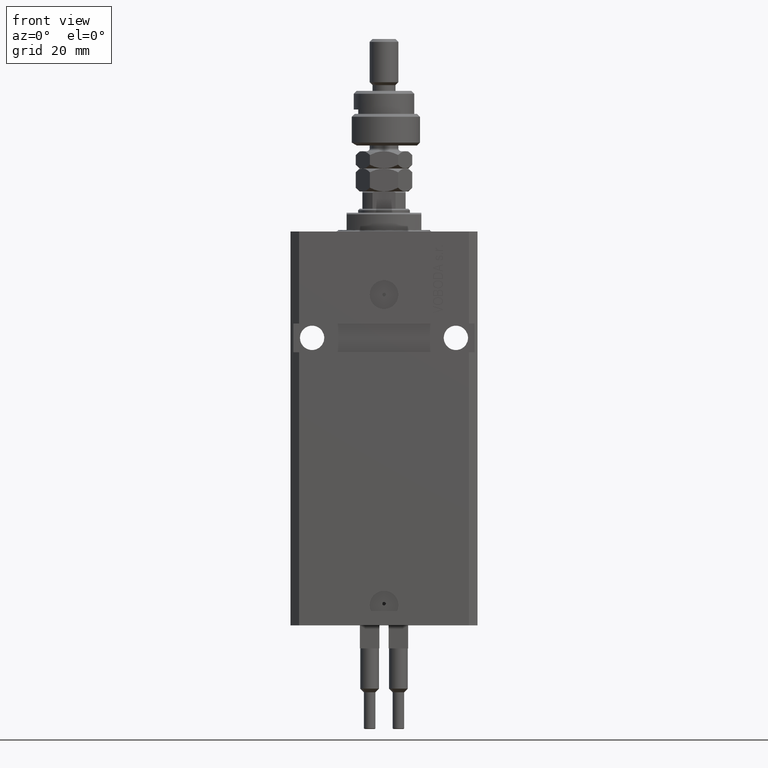
[diagram: clean part render]
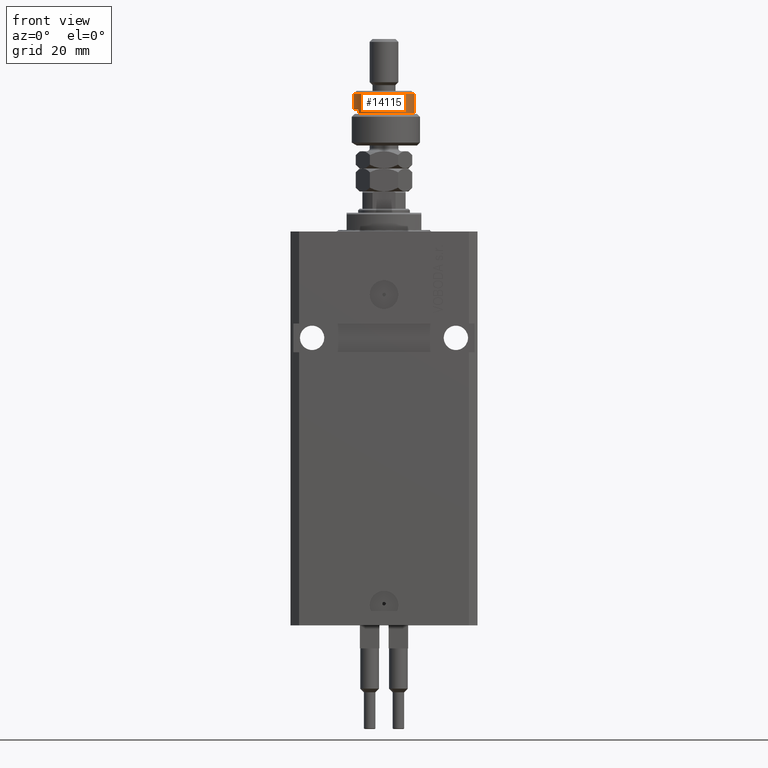
[diagram: same view with one face highlighted and labeled with its STEP entity id]
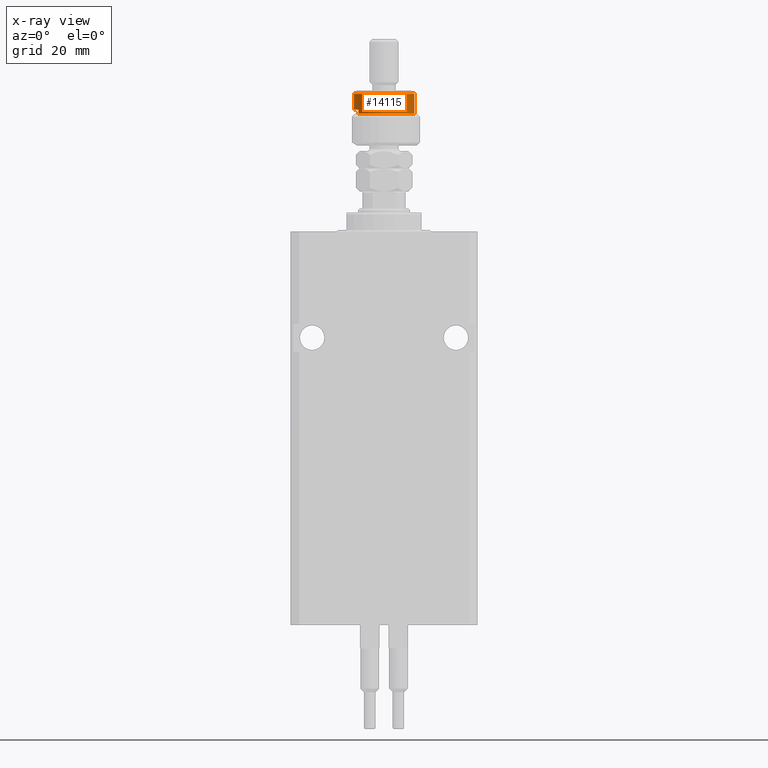
[diagram: x-ray of the same camera — body ghosted, the highlighted face saturated]
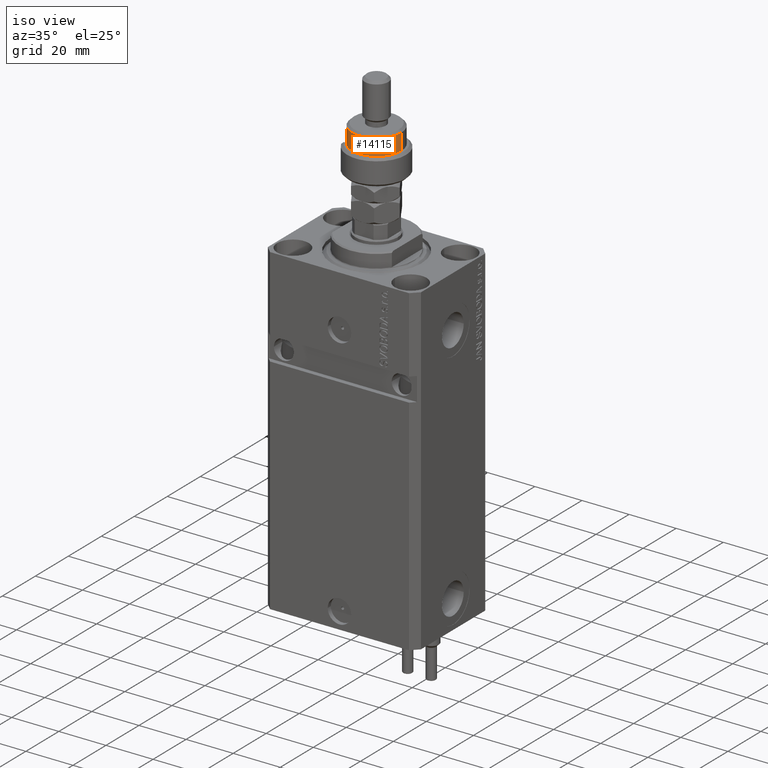
[diagram: same view with one face highlighted and labeled with its STEP entity id]
A machine part, front view. The second image highlights one B-rep face of the part: STEP entity #14115.
The next image is the same camera in x-ray: the body ghosted, the highlighted face saturated — about 0% of this face is hidden behind the body in this view.
A second angle (iso view) of the same face is appended — the face is thin or edge-on in the first view.
In plain terms, the highlighted cylindrical surface (edge-blend (fillet) strip) has radius 10.5 mm, axis along (-0, -0, -1).
Its self-contained STEP definition (entity closure, byte-faithful):
#281 = DIRECTION ( 'NONE',  ( 1.000000000000000000, 0.000000000000000000, 0.000000000000000000 ) ) ;
#1222 = AXIS2_PLACEMENT_3D ( 'NONE', #37140, #37922, #21049 ) ;
#2862 = CARTESIAN_POINT ( 'NONE',  ( 10.50000000000000000, 1.285879139104720831E-15, 11.00000000000000000 ) ) ;
#3966 = LINE ( 'NONE', #24690, #31913 ) ;
#7746 = LINE ( 'NONE', #23576, #8275 ) ;
#7771 = CIRCLE ( 'NONE', #36767, 10.50000000000000000 ) ;
#7819 = CARTESIAN_POINT ( 'NONE',  ( 0.000000000000000000, 0.000000000000000000, 11.00000000000000000 ) ) ;
#8275 = VECTOR ( 'NONE', #19682, 1000.000000000000000 ) ;
#8671 = CIRCLE ( 'NONE', #1222, 10.50000000000000000 ) ;
#9004 = EDGE_CURVE ( 'NONE', #46269, #34861, #37900, .T. ) ;
#9619 = CARTESIAN_POINT ( 'NONE',  ( -8.944271909999159220, -5.500000000000000000, 11.00000000000000000 ) ) ;
#10123 = EDGE_CURVE ( 'NONE', #13101, #34484, #7771, .T. ) ;
#10175 = CARTESIAN_POINT ( 'NONE',  ( -10.50000000000000000, 0.000000000000000000, 12.50000000000000000 ) ) ;
#10526 = EDGE_LOOP ( 'NONE', ( #19846, #28173, #45195, #47756, #13777, #35498 ) ) ;
#11220 = AXIS2_PLACEMENT_3D ( 'NONE', #33438, #49275, #13711 ) ;
#11795 = EDGE_CURVE ( 'NONE', #46269, #34484, #37444, .T. ) ;
#13101 = VERTEX_POINT ( 'NONE', #9619 ) ;
#13415 = DIRECTION ( 'NONE',  ( 0.000000000000000000, 0.000000000000000000, -1.000000000000000000 ) ) ;
#13711 = DIRECTION ( 'NONE',  ( -1.000000000000000000, 0.000000000000000000, 0.000000000000000000 ) ) ;
#13777 = ORIENTED_EDGE ( 'NONE', *, *, #47876, .T. ) ;
#14115 = ADVANCED_FACE ( 'NONE', ( #37325 ), #17609, .T. ) ;
#17609 = CYLINDRICAL_SURFACE ( 'NONE', #11220, 10.50000000000000000 ) ;
#19682 = DIRECTION ( 'NONE',  ( -0.000000000000000000, -0.000000000000000000, -1.000000000000000000 ) ) ;
#19846 = ORIENTED_EDGE ( 'NONE', *, *, #11795, .F. ) ;
#21049 = DIRECTION ( 'NONE',  ( -1.000000000000000000, 0.000000000000000000, 0.000000000000000000 ) ) ;
#23576 = CARTESIAN_POINT ( 'NONE',  ( -10.50000000000000000, 0.000000000000000000, 19.00000000000000000 ) ) ;
#23592 = VECTOR ( 'NONE', #26788, 1000.000000000000000 ) ;
#24690 = CARTESIAN_POINT ( 'NONE',  ( -8.944271909999159220, -5.500000000000000000, 19.00000000000000000 ) ) ;
#25093 = CARTESIAN_POINT ( 'NONE',  ( 0.000000000000000000, 0.000000000000000000, 17.99999999999999645 ) ) ;
#25550 = VERTEX_POINT ( 'NONE', #10175 ) ;
#26256 = EDGE_CURVE ( 'NONE', #34861, #25550, #7746, .T. ) ;
#26301 = AXIS2_PLACEMENT_3D ( 'NONE', #25093, #13415, #44819 ) ;
#26788 = DIRECTION ( 'NONE',  ( -0.000000000000000000, -0.000000000000000000, -1.000000000000000000 ) ) ;
#28173 = ORIENTED_EDGE ( 'NONE', *, *, #9004, .T. ) ;
#31709 = CARTESIAN_POINT ( 'NONE',  ( 10.50000000000000000, 1.285879139104720831E-15, 17.99999999999999645 ) ) ;
#31913 = VECTOR ( 'NONE', #47554, 1000.000000000000000 ) ;
#33438 = CARTESIAN_POINT ( 'NONE',  ( 0.000000000000000000, 0.000000000000000000, 19.00000000000000000 ) ) ;
#34484 = VERTEX_POINT ( 'NONE', #2862 ) ;
#34861 = VERTEX_POINT ( 'NONE', #49270 ) ;
#35498 = ORIENTED_EDGE ( 'NONE', *, *, #10123, .T. ) ;
#35827 = DIRECTION ( 'NONE',  ( 0.000000000000000000, 0.000000000000000000, 1.000000000000000000 ) ) ;
#36767 = AXIS2_PLACEMENT_3D ( 'NONE', #7819, #35827, #281 ) ;
#37140 = CARTESIAN_POINT ( 'NONE',  ( 0.000000000000000000, 0.000000000000000000, 12.50000000000000000 ) ) ;
#37325 = FACE_OUTER_BOUND ( 'NONE', #10526, .T. ) ;
#37444 = LINE ( 'NONE', #49648, #23592 ) ;
#37900 = CIRCLE ( 'NONE', #26301, 10.50000000000000000 ) ;
#37922 = DIRECTION ( 'NONE',  ( 0.000000000000000000, 0.000000000000000000, -1.000000000000000000 ) ) ;
#44446 = CARTESIAN_POINT ( 'NONE',  ( -8.944271909999159220, -5.500000000000000000, 12.50000000000000000 ) ) ;
#44819 = DIRECTION ( 'NONE',  ( 1.000000000000000000, 0.000000000000000000, 0.000000000000000000 ) ) ;
#45195 = ORIENTED_EDGE ( 'NONE', *, *, #26256, .T. ) ;
#46269 = VERTEX_POINT ( 'NONE', #31709 ) ;
#47554 = DIRECTION ( 'NONE',  ( -0.000000000000000000, -0.000000000000000000, -1.000000000000000000 ) ) ;
#47756 = ORIENTED_EDGE ( 'NONE', *, *, #47977, .F. ) ;
#47876 = EDGE_CURVE ( 'NONE', #50832, #13101, #3966, .T. ) ;
#47977 = EDGE_CURVE ( 'NONE', #50832, #25550, #8671, .T. ) ;
#49270 = CARTESIAN_POINT ( 'NONE',  ( -10.50000000000000000, 0.000000000000000000, 17.99999999999999645 ) ) ;
#49275 = DIRECTION ( 'NONE',  ( -0.000000000000000000, -0.000000000000000000, -1.000000000000000000 ) ) ;
#49648 = CARTESIAN_POINT ( 'NONE',  ( 10.50000000000000000, 1.285879139104720831E-15, 19.00000000000000000 ) ) ;
#50832 = VERTEX_POINT ( 'NONE', #44446 ) ;